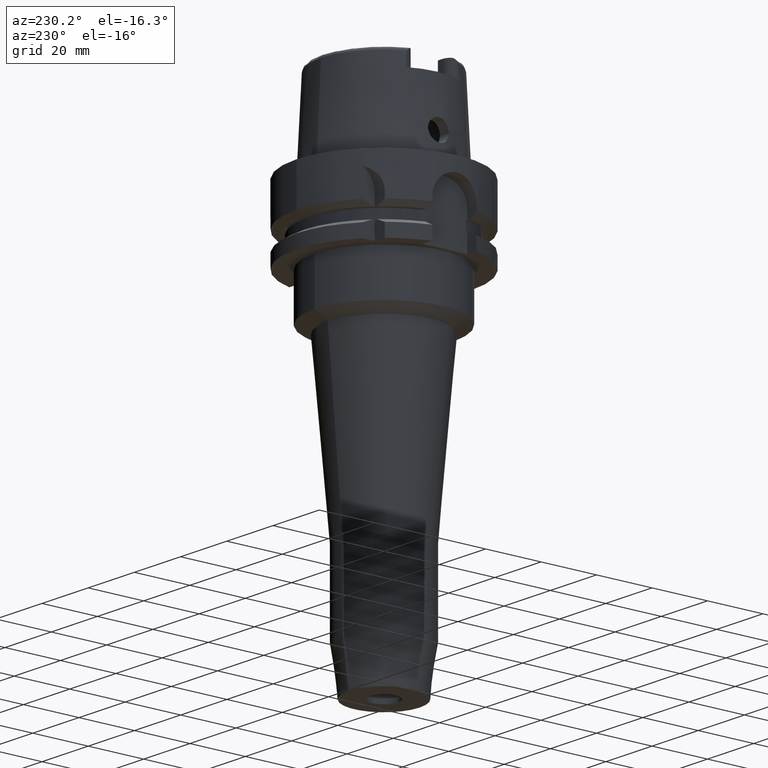
[diagram: clean part render]
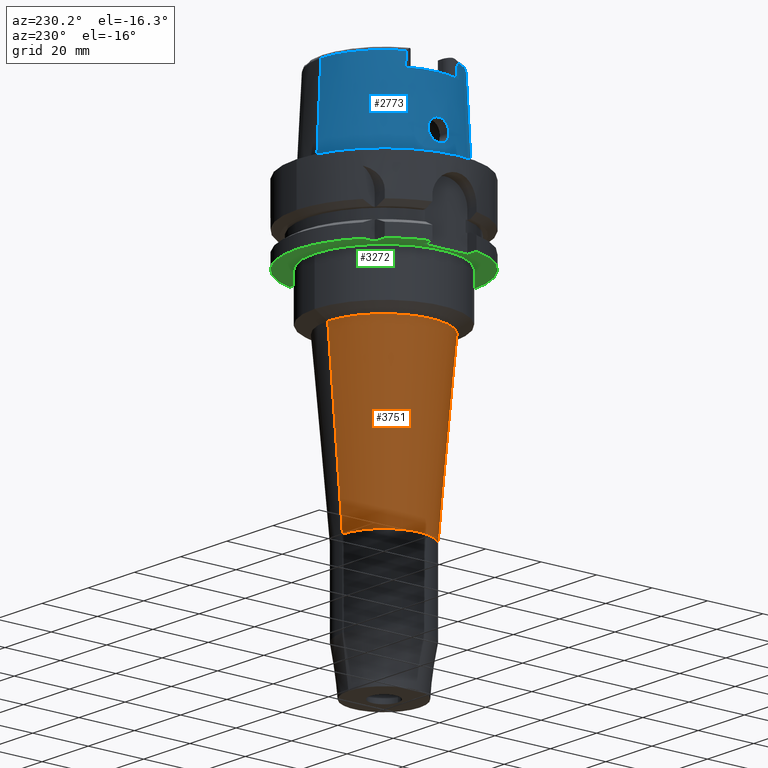
[diagram: same view with three faces highlighted in distinct colors, each labeled with its STEP entity id]
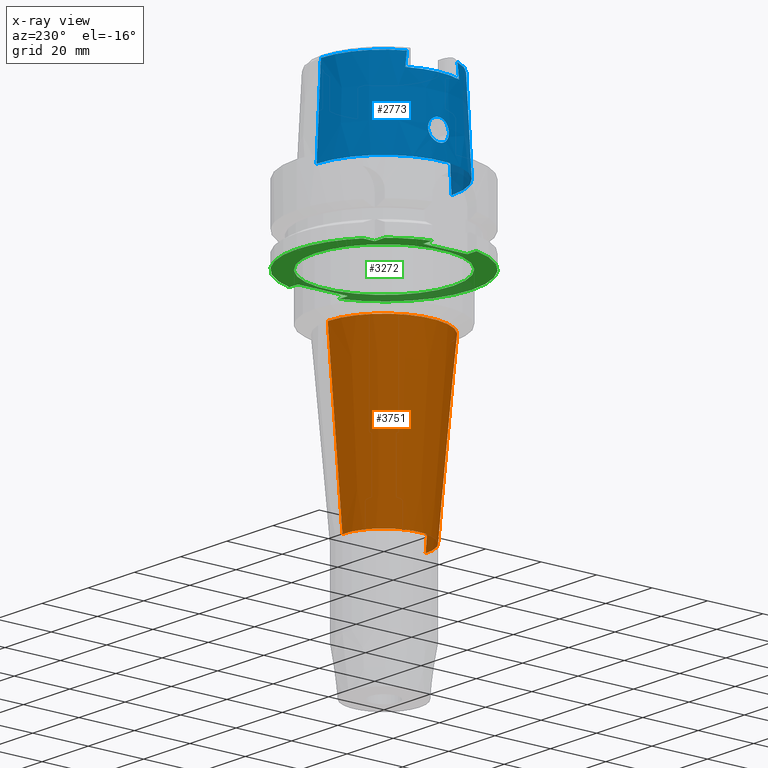
[diagram: x-ray of the same camera — body ghosted, the three highlighted faces saturated]
A machine part, auxiliary view with three faces highlighted in distinct colors.
The next image is the same camera in x-ray (body ghosted, the three faces saturated) — at least one of them is partly hidden behind the body in this view.
Their STEP definitions:

[orange] entity #3751 — the highlighted conical surface has half-angle 4.993 deg.
#1653=CARTESIAN_POINT('',(0.E0,0.E0,-4.462644999054E1));
#1654=DIRECTION('',(0.E0,0.E0,-1.E0));
#1655=DIRECTION('',(0.E0,-1.E0,0.E0));
#1656=AXIS2_PLACEMENT_3D('',#1653,#1654,#1655);
#1661=DIRECTION('',(0.E0,8.703403395522E-2,-9.962053387397E-1));
#1662=VECTOR('',#1661,6.069085123149E1);
#1663=CARTESIAN_POINT('',(0.E0,-2.028216960686E1,-4.462644999053E1));
#1664=LINE('',#1663,#1662);
#1668=CARTESIAN_POINT('',(0.E0,0.E0,-1.05087E2));
#1669=DIRECTION('',(0.E0,0.E0,-1.E0));
#1670=DIRECTION('',(0.E0,-1.E0,0.E0));
#1671=AXIS2_PLACEMENT_3D('',#1668,#1669,#1670);
#1676=DIRECTION('',(0.E0,-8.703403395522E-2,-9.962053387397E-1));
#1677=VECTOR('',#1676,6.069085123149E1);
#1678=CARTESIAN_POINT('',(0.E0,2.028216960686E1,-4.462644999053E1));
#1679=LINE('',#1678,#1677);
#2468=CARTESIAN_POINT('',(0.E0,1.5E1,-1.05087E2));
#2469=VERTEX_POINT('',#2468);
#2470=CARTESIAN_POINT('',(0.E0,-1.5E1,-1.05087E2));
#2471=VERTEX_POINT('',#2470);
#2472=CARTESIAN_POINT('',(0.E0,2.028216960686E1,-4.462644999053E1));
#2473=VERTEX_POINT('',#2472);
#2474=CARTESIAN_POINT('',(0.E0,-2.028216960686E1,-4.462644999053E1));
#2475=VERTEX_POINT('',#2474);
#3737=CARTESIAN_POINT('',(0.E0,0.E0,-7.485672499527E1));
#3738=DIRECTION('',(0.E0,0.E0,1.E0));
#3739=DIRECTION('',(0.E0,1.E0,0.E0));
#3740=AXIS2_PLACEMENT_3D('',#3737,#3738,#3739);
#3741=CONICAL_SURFACE('',#3740,1.764108480343E1,4.993E0);
#3743=ORIENTED_EDGE('',*,*,#3742,.F.);
#3744=ORIENTED_EDGE('',*,*,#3732,.F.);
#3746=ORIENTED_EDGE('',*,*,#3745,.T.);
#3748=ORIENTED_EDGE('',*,*,#3747,.T.);
#3749=EDGE_LOOP('',(#3743,#3744,#3746,#3748));
#3750=FACE_OUTER_BOUND('',#3749,.F.);
#1657=CIRCLE('',#1656,2.028216960685E1);
#1672=CIRCLE('',#1671,1.5E1);
#3732=EDGE_CURVE('',#2475,#2473,#1657,.T.);
#3742=EDGE_CURVE('',#2473,#2469,#1679,.T.);
#3745=EDGE_CURVE('',#2475,#2471,#1664,.T.);
#3747=EDGE_CURVE('',#2471,#2469,#1672,.T.);
#3751=ADVANCED_FACE('',(#3750),#3741,.T.);

[blue] entity #2773 — the highlighted conical surface has half-angle 2.862 deg.
#69=CARTESIAN_POINT('',(0.E0,0.E0,2.6E1));
#70=DIRECTION('',(0.E0,0.E0,-1.E0));
#71=DIRECTION('',(-9.068002397791E-1,-4.215605829967E-1,0.E0));
#72=AXIS2_PLACEMENT_3D('',#69,#70,#71);
#160=CARTESIAN_POINT('',(-2.086999931535E1,-9.702216590561E0,2.6E1));
#161=CARTESIAN_POINT('',(-2.086999931535E1,-9.642048820361E0,2.650727061302E1));
#162=CARTESIAN_POINT('',(-2.087000013188E1,-9.520999784311E0,2.752034962291E1));
#163=CARTESIAN_POINT('',(-2.087000056538E1,-9.336893546791E0,2.903557629453E1));
#164=CARTESIAN_POINT('',(-2.086999859286E1,-9.212633972085E0,3.004273962856E1));
#165=CARTESIAN_POINT('',(-2.086999859286E1,-9.150003160547E0,3.054568941686E1));
#170=CARTESIAN_POINT('',(-2.086999859286E1,-9.150003160547E0,3.054568941686E1));
#171=CARTESIAN_POINT('',(-2.086999859286E1,-9.145656550786E0,3.058059438465E1));
#172=CARTESIAN_POINT('',(-2.086998097501E1,-9.136997529037E0,3.065032563367E1));
#173=CARTESIAN_POINT('',(-2.086989311877E1,-9.124126494439E0,3.075512926385E1));
#174=CARTESIAN_POINT('',(-2.086979784207E1,-9.115619992630E0,3.082498881156E1));
#175=CARTESIAN_POINT('',(-2.086974104059E1,-9.111384043401E0,3.085992601097E1));
#180=DIRECTION('',(8.032179027582E-5,-4.993928193351E-2,-9.987522523971E-1));
#181=VECTOR('',#180,3.089848062794E1);
#182=CARTESIAN_POINT('',(-2.481821280836E-3,-2.277198688789E1,
3.085992712280E1));
#183=LINE('',#182,#181);
#187=CARTESIAN_POINT('',(-2.086974110890E1,9.111383545307E0,3.085992739891E1));
#188=CARTESIAN_POINT('',(-2.086979791523E1,9.115619747529E0,3.082498808790E1));
#189=CARTESIAN_POINT('',(-2.086989333338E1,9.124126689081E0,3.075511924074E1));
#190=CARTESIAN_POINT('',(-2.086998014064E1,9.137000168762E0,3.065036215736E1));
#191=CARTESIAN_POINT('',(-2.087000040551E1,9.145652229693E0,3.058051608329E1));
#192=CARTESIAN_POINT('',(-2.087000040551E1,9.149999089201E0,3.054560915664E1));
#197=CARTESIAN_POINT('',(-2.087000040551E1,9.149999089201E0,3.054560915664E1));
#198=CARTESIAN_POINT('',(-2.087000040551E1,9.212612082852E0,3.004280312577E1));
#199=CARTESIAN_POINT('',(-2.087000020370E1,9.336923098287E0,2.903562847774E1));
#200=CARTESIAN_POINT('',(-2.086999867880E1,9.521029051541E0,2.752042416354E1));
#201=CARTESIAN_POINT('',(-2.087000294700E1,9.642028220330E0,2.650729690937E1));
#202=CARTESIAN_POINT('',(-2.087000294700E1,9.702199254904E0,2.6E1));
#207=CARTESIAN_POINT('',(-2.405252611747E1,6.507195594501E-14,5.25E0));
#208=CARTESIAN_POINT('',(-2.405252611747E1,-3.539371138703E-1,5.25E0));
#209=CARTESIAN_POINT('',(-2.403138355696E1,-1.062739339106E0,5.351237667571E0));
#210=CARTESIAN_POINT('',(-2.394445199445E1,-2.040101645220E0,5.792927260793E0));
#211=CARTESIAN_POINT('',(-2.382210989187E1,-2.864329205121E0,6.499620767970E0));
#212=CARTESIAN_POINT('',(-2.369483467559E1,-3.456623539286E0,7.416346440109E0));
#213=CARTESIAN_POINT('',(-2.359383677536E1,-3.763241030917E0,8.460493495612E0));
#214=CARTESIAN_POINT('',(-2.353912722835E1,-3.762050460603E0,9.544159398709E0));
#215=CARTESIAN_POINT('',(-2.353479111729E1,-3.457772329577E0,1.057722020441E1));
#216=CARTESIAN_POINT('',(-2.356916712298E1,-2.879309625071E0,1.148124151293E1));
#217=CARTESIAN_POINT('',(-2.362130524511E1,-2.062866255240E0,1.219341663838E1));
#218=CARTESIAN_POINT('',(-2.366596758220E1,-1.075173607198E0,1.264654233397E1));
#219=CARTESIAN_POINT('',(-2.367751368058E1,-3.584931676640E-1,1.275E1));
#220=CARTESIAN_POINT('',(-2.367751368058E1,0.E0,1.275E1));
#225=CARTESIAN_POINT('',(-2.367751368058E1,0.E0,1.275E1));
#226=CARTESIAN_POINT('',(-2.367751368058E1,3.573698471563E-1,1.275E1));
#227=CARTESIAN_POINT('',(-2.366602710060E1,1.072470232321E0,1.264702361282E1));
#228=CARTESIAN_POINT('',(-2.362156522329E1,2.058419648218E0,1.219632408892E1));
#229=CARTESIAN_POINT('',(-2.356917684752E1,2.879139548550E0,1.148245592891E1));
#230=CARTESIAN_POINT('',(-2.353465226491E1,3.460321969277E0,1.057244261511E1));
#231=CARTESIAN_POINT('',(-2.353933189422E1,3.762049253972E0,9.540031611173E0));
#232=CARTESIAN_POINT('',(-2.359357530962E1,3.762853521961E0,8.466800667016E0));
#233=CARTESIAN_POINT('',(-2.369280644531E1,3.463778475160E0,7.434523008737E0));
#234=CARTESIAN_POINT('',(-2.381915118120E1,2.880552311285E0,6.518217263143E0));
#235=CARTESIAN_POINT('',(-2.394281608994E1,2.055623099744E0,5.801334996629E0));
#236=CARTESIAN_POINT('',(-2.403140465058E1,1.065775828137E0,5.351068072298E0));
#237=CARTESIAN_POINT('',(-2.405252611747E1,3.543530117685E-1,5.25E0));
#238=CARTESIAN_POINT('',(-2.405252611747E1,6.507195594501E-14,5.25E0));
#287=CARTESIAN_POINT('',(0.E0,0.E0,3.085992712280E1));
#288=DIRECTION('',(0.E0,0.E0,-1.E0));
#289=DIRECTION('',(0.E0,-1.E0,0.E0));
#290=AXIS2_PLACEMENT_3D('',#287,#288,#289);
#483=CARTESIAN_POINT('',(0.E0,0.E0,3.085992712280E1));
#484=DIRECTION('',(0.E0,0.E0,-1.E0));
#485=DIRECTION('',(-9.164655183266E-1,4.001136759952E-1,0.E0));
#486=AXIS2_PLACEMENT_3D('',#483,#484,#485);
#537=DIRECTION('',(-8.032179027593E-5,4.993928193351E-2,-9.987522523971E-1));
#538=VECTOR('',#537,3.089848062794E1);
#539=CARTESIAN_POINT('',(2.481821280840E-3,2.277198688789E1,3.085992712280E1));
#540=LINE('',#539,#538);
#638=CARTESIAN_POINT('',(0.E0,0.E0,-7.389644451905E-13));
#639=DIRECTION('',(0.E0,0.E0,1.E0));
#640=DIRECTION('',(0.E0,1.E0,0.E0));
#641=AXIS2_PLACEMENT_3D('',#638,#639,#640);
#2325=CARTESIAN_POINT('',(-2.086999931535E1,-9.702216590561E0,2.6E1));
#2326=VERTEX_POINT('',#2325);
#2327=CARTESIAN_POINT('',(-2.087E1,9.702213322399E0,2.6E1));
#2328=VERTEX_POINT('',#2327);
#2353=VERTEX_POINT('',#187);
#2354=VERTEX_POINT('',#192);
#2355=VERTEX_POINT('',#165);
#2356=VERTEX_POINT('',#175);
#2357=CARTESIAN_POINT('',(0.E0,-2.277198729362E1,3.085992712280E1));
#2358=VERTEX_POINT('',#2357);
#2359=CARTESIAN_POINT('',(0.E0,-2.431503482329E1,-3.410605131648E-13));
#2360=VERTEX_POINT('',#2359);
#2361=CARTESIAN_POINT('',(0.E0,2.431503482329E1,-7.389644451905E-13));
#2362=VERTEX_POINT('',#2361);
#2363=CARTESIAN_POINT('',(2.481821280840E-3,2.277198688789E1,3.085992712280E1));
#2364=VERTEX_POINT('',#2363);
#2365=VERTEX_POINT('',#207);
#2366=VERTEX_POINT('',#220);
#2742=CARTESIAN_POINT('',(0.E0,0.E0,1.542996356140E1));
#2743=DIRECTION('',(0.E0,0.E0,-1.E0));
#2744=DIRECTION('',(0.E0,-1.E0,0.E0));
#2745=AXIS2_PLACEMENT_3D('',#2742,#2743,#2744);
#2746=CONICAL_SURFACE('',#2745,2.354351105845E1,2.8625E0);
#2747=ORIENTED_EDGE('',*,*,#2680,.F.);
#2749=ORIENTED_EDGE('',*,*,#2748,.T.);
#2750=ORIENTED_EDGE('',*,*,#2730,.T.);
#2752=ORIENTED_EDGE('',*,*,#2751,.F.);
#2754=ORIENTED_EDGE('',*,*,#2753,.T.);
#2756=ORIENTED_EDGE('',*,*,#2755,.F.);
#2758=ORIENTED_EDGE('',*,*,#2757,.F.);
#2760=ORIENTED_EDGE('',*,*,#2759,.F.);
#2762=ORIENTED_EDGE('',*,*,#2761,.T.);
#2764=ORIENTED_EDGE('',*,*,#2763,.T.);
#2765=EDGE_LOOP('',(#2747,#2749,#2750,#2752,#2754,#2756,#2758,#2760,#2762,
#2764));
#2766=FACE_OUTER_BOUND('',#2765,.F.);
#2768=ORIENTED_EDGE('',*,*,#2767,.T.);
#2770=ORIENTED_EDGE('',*,*,#2769,.T.);
#2771=EDGE_LOOP('',(#2768,#2770));
#2772=FACE_BOUND('',#2771,.F.);
#73=CIRCLE('',#72,2.301499170874E1);
#166=B_SPLINE_CURVE_WITH_KNOTS('',3,(#160,#161,#162,#163,#164,#165),
.UNSPECIFIED.,.F.,.F.,(4,1,1,4),(0.E0,3.333333333333E-1,6.666666666667E-1,1.E0),
.UNSPECIFIED.);
#176=B_SPLINE_CURVE_WITH_KNOTS('',3,(#170,#171,#172,#173,#174,#175),
.UNSPECIFIED.,.F.,.F.,(4,1,1,4),(0.E0,3.333333333333E-1,6.666666666667E-1,1.E0),
.UNSPECIFIED.);
#193=B_SPLINE_CURVE_WITH_KNOTS('',3,(#187,#188,#189,#190,#191,#192),
.UNSPECIFIED.,.F.,.F.,(4,1,1,4),(0.E0,3.333333333333E-1,6.666666666667E-1,1.E0),
.UNSPECIFIED.);
#203=B_SPLINE_CURVE_WITH_KNOTS('',3,(#197,#198,#199,#200,#201,#202),
.UNSPECIFIED.,.F.,.F.,(4,1,1,4),(0.E0,3.333333333333E-1,6.666666666667E-1,1.E0),
.UNSPECIFIED.);
#221=B_SPLINE_CURVE_WITH_KNOTS('',3,(#207,#208,#209,#210,#211,#212,#213,#214,
#215,#216,#217,#218,#219,#220),.UNSPECIFIED.,.F.,.F.,(4,1,1,1,1,1,1,1,1,1,1,4),(
0.E0,9.090909090909E-2,1.818181818182E-1,2.727272727273E-1,3.636363636364E-1,
4.545454545455E-1,5.454545454545E-1,6.363636363636E-1,7.272727272727E-1,
8.181818181818E-1,9.090909090909E-1,1.E0),.UNSPECIFIED.);
#239=B_SPLINE_CURVE_WITH_KNOTS('',3,(#225,#226,#227,#228,#229,#230,#231,#232,
#233,#234,#235,#236,#237,#238),.UNSPECIFIED.,.F.,.F.,(4,1,1,1,1,1,1,1,1,1,1,4),(
0.E0,9.090909090909E-2,1.818181818182E-1,2.727272727273E-1,3.636363636364E-1,
4.545454545455E-1,5.454545454545E-1,6.363636363636E-1,7.272727272727E-1,
8.181818181818E-1,9.090909090909E-1,1.E0),.UNSPECIFIED.);
#291=CIRCLE('',#290,2.277198729362E1);
#487=CIRCLE('',#486,2.277198729362E1);
#642=CIRCLE('',#641,2.431503482329E1);
#2680=EDGE_CURVE('',#2326,#2328,#73,.T.);
#2730=EDGE_CURVE('',#2355,#2356,#176,.T.);
#2748=EDGE_CURVE('',#2326,#2355,#166,.T.);
#2751=EDGE_CURVE('',#2358,#2356,#291,.T.);
#2753=EDGE_CURVE('',#2358,#2360,#183,.T.);
#2755=EDGE_CURVE('',#2362,#2360,#642,.T.);
#2757=EDGE_CURVE('',#2364,#2362,#540,.T.);
#2759=EDGE_CURVE('',#2353,#2364,#487,.T.);
#2761=EDGE_CURVE('',#2353,#2354,#193,.T.);
#2763=EDGE_CURVE('',#2354,#2328,#203,.T.);
#2767=EDGE_CURVE('',#2365,#2366,#221,.T.);
#2769=EDGE_CURVE('',#2366,#2365,#239,.T.);
#2773=ADVANCED_FACE('',(#2766,#2772),#2746,.T.);

[green] entity #3272 — the highlighted planar face has unit normal (0, 0, 1).
#929=DIRECTION('',(0.E0,1.E0,0.E0));
#930=VECTOR('',#929,1.6E1);
#931=CARTESIAN_POINT('',(-2.65E1,-8.E0,-2.6E1));
#932=LINE('',#931,#930);
#966=DIRECTION('',(-1.E0,-1.540316790609E-13,0.E0));
#967=VECTOR('',#966,4.336187047278E0);
#968=CARTESIAN_POINT('',(-2.E1,2.E1,-2.6E1));
#969=LINE('',#968,#967);
#973=CARTESIAN_POINT('',(0.E0,0.E0,-2.6E1));
#974=DIRECTION('',(0.E0,0.E0,1.E0));
#975=DIRECTION('',(-7.725773665802E-1,6.349206349206E-1,0.E0));
#976=AXIS2_PLACEMENT_3D('',#973,#974,#975);
#981=DIRECTION('',(-1.E0,-8.686570378871E-14,0.E0));
#982=VECTOR('',#981,3.967195473163E0);
#983=CARTESIAN_POINT('',(-2.65E1,-8.E0,-2.6E1));
#984=LINE('',#983,#982);
#988=CARTESIAN_POINT('',(0.E0,0.E0,-2.6E1));
#989=DIRECTION('',(0.E0,0.E0,1.E0));
#990=DIRECTION('',(-9.672125547036E-1,-2.539682539683E-1,0.E0));
#991=AXIS2_PLACEMENT_3D('',#988,#989,#990);
#996=CARTESIAN_POINT('',(0.E0,0.E0,-2.6E1));
#997=DIRECTION('',(0.E0,0.E0,1.E0));
#998=DIRECTION('',(0.E0,-1.E0,0.E0));
#999=AXIS2_PLACEMENT_3D('',#996,#997,#998);
#1004=DIRECTION('',(0.E0,1.E0,0.E0));
#1005=VECTOR('',#1004,1.8E1);
#1006=CARTESIAN_POINT('',(2.65E1,-9.E0,-2.6E1));
#1007=LINE('',#1006,#1005);
#1011=DIRECTION('',(1.E0,-7.275179563200E-14,0.E0));
#1012=VECTOR('',#1011,3.686917696248E0);
#1013=CARTESIAN_POINT('',(2.65E1,9.E0,-2.6E1));
#1014=LINE('',#1013,#1012);
#1018=CARTESIAN_POINT('',(0.E0,0.E0,-2.6E1));
#1019=DIRECTION('',(0.E0,0.E0,1.E0));
#1020=DIRECTION('',(9.583148474999E-1,2.857142857143E-1,0.E0));
#1021=AXIS2_PLACEMENT_3D('',#1018,#1019,#1020);
#1026=CARTESIAN_POINT('',(0.E0,0.E0,-2.6E1));
#1027=DIRECTION('',(0.E0,0.E0,1.E0));
#1028=DIRECTION('',(0.E0,1.E0,0.E0));
#1029=AXIS2_PLACEMENT_3D('',#1026,#1027,#1028);
#1034=CARTESIAN_POINT('',(0.E0,0.E0,-2.6E1));
#1035=DIRECTION('',(0.E0,0.E0,-1.E0));
#1036=DIRECTION('',(0.E0,-1.E0,0.E0));
#1037=AXIS2_PLACEMENT_3D('',#1034,#1035,#1036);
#1042=CARTESIAN_POINT('',(0.E0,0.E0,-2.6E1));
#1043=DIRECTION('',(0.E0,0.E0,-1.E0));
#1044=DIRECTION('',(0.E0,1.E0,0.E0));
#1045=AXIS2_PLACEMENT_3D('',#1042,#1043,#1044);
#1050=DIRECTION('',(1.556703139446E-13,1.E0,0.E0));
#1051=VECTOR('',#1050,4.336187047278E0);
#1052=CARTESIAN_POINT('',(-2.E1,2.E1,-2.6E1));
#1053=LINE('',#1052,#1051);
#1153=DIRECTION('',(1.E0,6.889739586341E-14,0.E0));
#1154=VECTOR('',#1153,3.686917696248E0);
#1155=CARTESIAN_POINT('',(2.65E1,-9.E0,-2.6E1));
#1156=LINE('',#1155,#1154);
#1539=DIRECTION('',(-1.E0,8.776122650818E-14,0.E0));
#1540=VECTOR('',#1539,3.967195473163E0);
#1541=CARTESIAN_POINT('',(-2.65E1,8.E0,-2.6E1));
#1542=LINE('',#1541,#1540);
#2480=CARTESIAN_POINT('',(0.E0,2.5E1,-2.6E1));
#2481=VERTEX_POINT('',#2480);
#2482=CARTESIAN_POINT('',(0.E0,-2.5E1,-2.6E1));
#2483=VERTEX_POINT('',#2482);
#2484=CARTESIAN_POINT('',(-2.E1,2.E1,-2.6E1));
#2485=CARTESIAN_POINT('',(-2.E1,2.433618704728E1,-2.6E1));
#2486=VERTEX_POINT('',#2484);
#2487=VERTEX_POINT('',#2485);
#2488=CARTESIAN_POINT('',(-2.433618704728E1,2.E1,-2.6E1));
#2489=VERTEX_POINT('',#2488);
#2490=CARTESIAN_POINT('',(-3.046719547316E1,8.E0,-2.6E1));
#2491=VERTEX_POINT('',#2490);
#2492=CARTESIAN_POINT('',(-2.65E1,8.E0,-2.6E1));
#2493=VERTEX_POINT('',#2492);
#2494=CARTESIAN_POINT('',(-2.65E1,-8.E0,-2.6E1));
#2495=VERTEX_POINT('',#2494);
#2496=CARTESIAN_POINT('',(-3.046719547316E1,-8.E0,-2.6E1));
#2497=VERTEX_POINT('',#2496);
#2498=CARTESIAN_POINT('',(-1.294568961206E-14,-3.15E1,-2.6E1));
#2499=CARTESIAN_POINT('',(3.018691769625E1,-9.E0,-2.6E1));
#2500=VERTEX_POINT('',#2498);
#2501=VERTEX_POINT('',#2499);
#2502=CARTESIAN_POINT('',(2.65E1,-9.E0,-2.6E1));
#2503=VERTEX_POINT('',#2502);
#2504=CARTESIAN_POINT('',(2.65E1,9.E0,-2.6E1));
#2505=VERTEX_POINT('',#2504);
#2506=CARTESIAN_POINT('',(3.018691769625E1,9.E0,-2.6E1));
#2507=VERTEX_POINT('',#2506);
#2508=CARTESIAN_POINT('',(1.065814103640E-14,3.15E1,-2.6E1));
#2509=VERTEX_POINT('',#2508);
#3234=CARTESIAN_POINT('',(0.E0,0.E0,-2.6E1));
#3235=DIRECTION('',(0.E0,0.E0,1.E0));
#3236=DIRECTION('',(0.E0,1.E0,0.E0));
#3237=AXIS2_PLACEMENT_3D('',#3234,#3235,#3236);
#3238=PLANE('',#3237);
#3240=ORIENTED_EDGE('',*,*,#3239,.F.);
#3242=ORIENTED_EDGE('',*,*,#3241,.T.);
#3244=ORIENTED_EDGE('',*,*,#3243,.T.);
#3246=ORIENTED_EDGE('',*,*,#3245,.F.);
#3247=ORIENTED_EDGE('',*,*,#3211,.F.);
#3249=ORIENTED_EDGE('',*,*,#3248,.T.);
#3251=ORIENTED_EDGE('',*,*,#3250,.T.);
#3253=ORIENTED_EDGE('',*,*,#3252,.T.);
#3255=ORIENTED_EDGE('',*,*,#3254,.F.);
#3257=ORIENTED_EDGE('',*,*,#3256,.T.);
#3259=ORIENTED_EDGE('',*,*,#3258,.T.);
#3261=ORIENTED_EDGE('',*,*,#3260,.T.);
#3263=ORIENTED_EDGE('',*,*,#3262,.T.);
#3264=EDGE_LOOP('',(#3240,#3242,#3244,#3246,#3247,#3249,#3251,#3253,#3255,#3257,
#3259,#3261,#3263));
#3265=FACE_OUTER_BOUND('',#3264,.F.);
#3267=ORIENTED_EDGE('',*,*,#3266,.T.);
#3269=ORIENTED_EDGE('',*,*,#3268,.T.);
#3270=EDGE_LOOP('',(#3267,#3269));
#3271=FACE_BOUND('',#3270,.F.);
#977=CIRCLE('',#976,3.15E1);
#992=CIRCLE('',#991,3.15E1);
#1000=CIRCLE('',#999,3.15E1);
#1022=CIRCLE('',#1021,3.15E1);
#1030=CIRCLE('',#1029,3.15E1);
#1038=CIRCLE('',#1037,2.5E1);
#1046=CIRCLE('',#1045,2.5E1);
#3211=EDGE_CURVE('',#2495,#2493,#932,.T.);
#3239=EDGE_CURVE('',#2486,#2487,#1053,.T.);
#3241=EDGE_CURVE('',#2486,#2489,#969,.T.);
#3243=EDGE_CURVE('',#2489,#2491,#977,.T.);
#3245=EDGE_CURVE('',#2493,#2491,#1542,.T.);
#3248=EDGE_CURVE('',#2495,#2497,#984,.T.);
#3250=EDGE_CURVE('',#2497,#2500,#992,.T.);
#3252=EDGE_CURVE('',#2500,#2501,#1000,.T.);
#3254=EDGE_CURVE('',#2503,#2501,#1156,.T.);
#3256=EDGE_CURVE('',#2503,#2505,#1007,.T.);
#3258=EDGE_CURVE('',#2505,#2507,#1014,.T.);
#3260=EDGE_CURVE('',#2507,#2509,#1022,.T.);
#3262=EDGE_CURVE('',#2509,#2487,#1030,.T.);
#3266=EDGE_CURVE('',#2483,#2481,#1038,.T.);
#3268=EDGE_CURVE('',#2481,#2483,#1046,.T.);
#3272=ADVANCED_FACE('',(#3265,#3271),#3238,.F.);